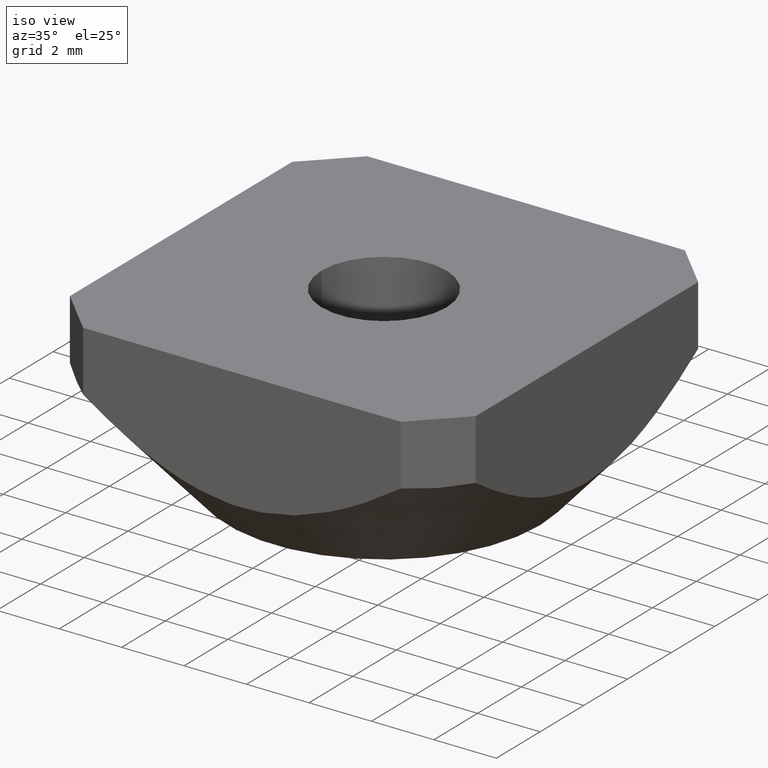
[diagram: clean part render]
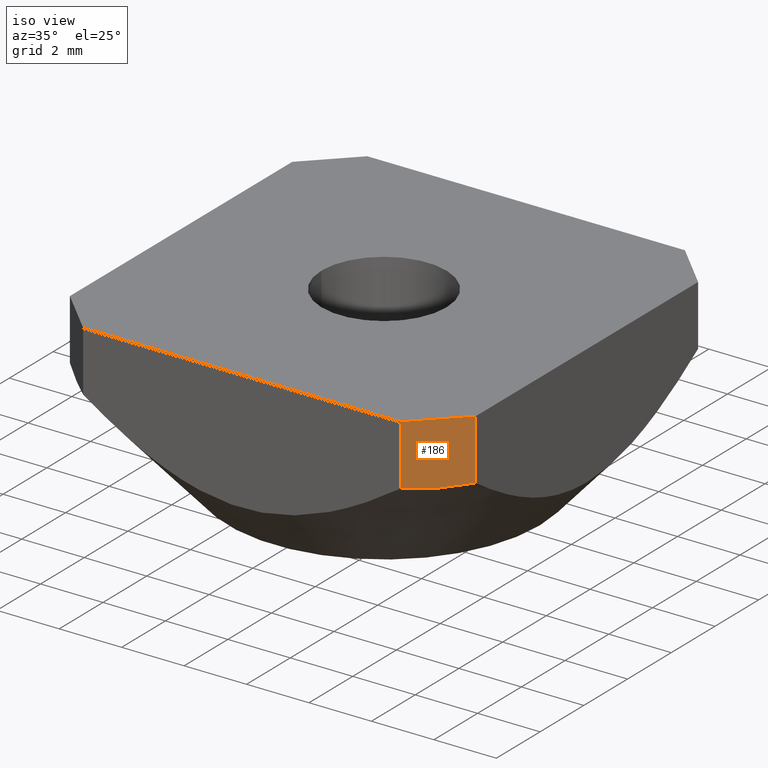
[diagram: same view with one face highlighted and labeled with its STEP entity id]
A machine part, iso view. The second image highlights one B-rep face of the part: STEP entity #186.
In plain terms, the highlighted planar face has unit normal (0.7071, -0.7071, 0).
Its self-contained STEP definition (entity closure, byte-faithful):
#3 = EDGE_CURVE ( 'NONE', #543, #121, #117, .T. ) ;
#7 = LINE ( 'NONE', #356, #351 ) ;
#16 = EDGE_CURVE ( 'NONE', #169, #543, #7, .T. ) ;
#17 = FACE_OUTER_BOUND ( 'NONE', #42, .T. ) ;
#42 = EDGE_LOOP ( 'NONE', ( #532, #547, #238, #360 ) ) ;
#47 = CARTESIAN_POINT ( 'NONE',  ( 6.500000000012471801, -5.085786437677110250, -1.933334202242371402 ) ) ;
#62 = LINE ( 'NONE', #153, #344 ) ;
#65 = DIRECTION ( 'NONE',  ( 0.7071067811865474617, 0.7071067811865474617, 0.0000000000000000000 ) ) ;
#76 = CARTESIAN_POINT ( 'NONE',  ( 6.028595479244057032, -5.557190958382852486, -2.021894486498649446 ) ) ;
#85 = CARTESIAN_POINT ( 'NONE',  ( 5.085786437677106697, -6.500000000012474466, -1.933334202242371402 ) ) ;
#97 = DIRECTION ( 'NONE',  ( 0.0000000000000000000, 0.0000000000000000000, -1.000000000000000000 ) ) ;
#98 = LINE ( 'NONE', #379, #551 ) ;
#117 = B_SPLINE_CURVE_WITH_KNOTS ( 'NONE', 3,
 ( #573, #490, #76, #47 ),
 .UNSPECIFIED., .F., .F.,
 ( 4, 4 ),
 ( 6.051050471646755322E-14, 0.002000000000007151873 ),
 .UNSPECIFIED. ) ;
#121 = VERTEX_POINT ( 'NONE', #132 ) ;
#132 = CARTESIAN_POINT ( 'NONE',  ( 6.500000000012471801, -5.085786437677110250, -1.933334202242371402 ) ) ;
#151 = CARTESIAN_POINT ( 'NONE',  ( 5.085786437626906853, -6.500000000000002665, 0.0000000000000000000 ) ) ;
#153 = CARTESIAN_POINT ( 'NONE',  ( 6.500000000000000888, -5.085786437626907741, 0.0000000000000000000 ) ) ;
#169 = VERTEX_POINT ( 'NONE', #151 ) ;
#186 = ADVANCED_FACE ( 'NONE', ( #17 ), #463, .T. ) ;
#238 = ORIENTED_EDGE ( 'NONE', *, *, #3, .T. ) ;
#242 = DIRECTION ( 'NONE',  ( 0.7071067811865475727, -0.7071067811865475727, 0.0000000000000000000 ) ) ;
#275 = CARTESIAN_POINT ( 'NONE',  ( 6.500000000000000888, -5.085786437626907741, 0.0000000000000000000 ) ) ;
#322 = VERTEX_POINT ( 'NONE', #275 ) ;
#331 = CARTESIAN_POINT ( 'NONE',  ( 5.085786437626905965, -6.500000000000003553, 0.0000000000000000000 ) ) ;
#344 = VECTOR ( 'NONE', #97, 1000.000000000000000 ) ;
#351 = VECTOR ( 'NONE', #353, 1000.000000000000000 ) ;
#353 = DIRECTION ( 'NONE',  ( 0.0000000000000000000, -0.0000000000000000000, -1.000000000000000000 ) ) ;
#356 = CARTESIAN_POINT ( 'NONE',  ( 5.085786437626905965, -6.500000000000003553, 0.0000000000000000000 ) ) ;
#360 = ORIENTED_EDGE ( 'NONE', *, *, #440, .F. ) ;
#379 = CARTESIAN_POINT ( 'NONE',  ( 5.085786437626905965, -6.500000000000003553, 0.0000000000000000000 ) ) ;
#440 = EDGE_CURVE ( 'NONE', #322, #121, #62, .T. ) ;
#453 = EDGE_CURVE ( 'NONE', #169, #322, #98, .T. ) ;
#463 = PLANE ( 'NONE',  #481 ) ;
#481 = AXIS2_PLACEMENT_3D ( 'NONE', #331, #242, #65 ) ;
#490 = CARTESIAN_POINT ( 'NONE',  ( 5.557190958361344357, -6.028595479226081189, -2.021894486487701315 ) ) ;
#532 = ORIENTED_EDGE ( 'NONE', *, *, #453, .F. ) ;
#543 = VERTEX_POINT ( 'NONE', #85 ) ;
#547 = ORIENTED_EDGE ( 'NONE', *, *, #16, .T. ) ;
#551 = VECTOR ( 'NONE', #556, 1000.000000000000000 ) ;
#556 = DIRECTION ( 'NONE',  ( 0.7071067811865473507, 0.7071067811865477948, 0.0000000000000000000 ) ) ;
#573 = CARTESIAN_POINT ( 'NONE',  ( 5.085786437677106697, -6.500000000012474466, -1.933334202242371402 ) ) ;